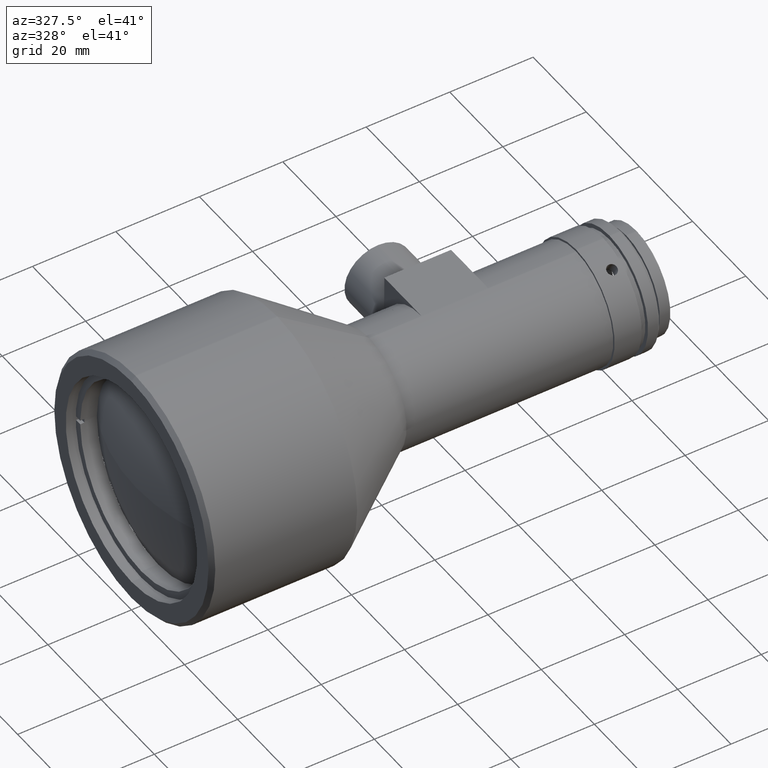
[diagram: clean part render]
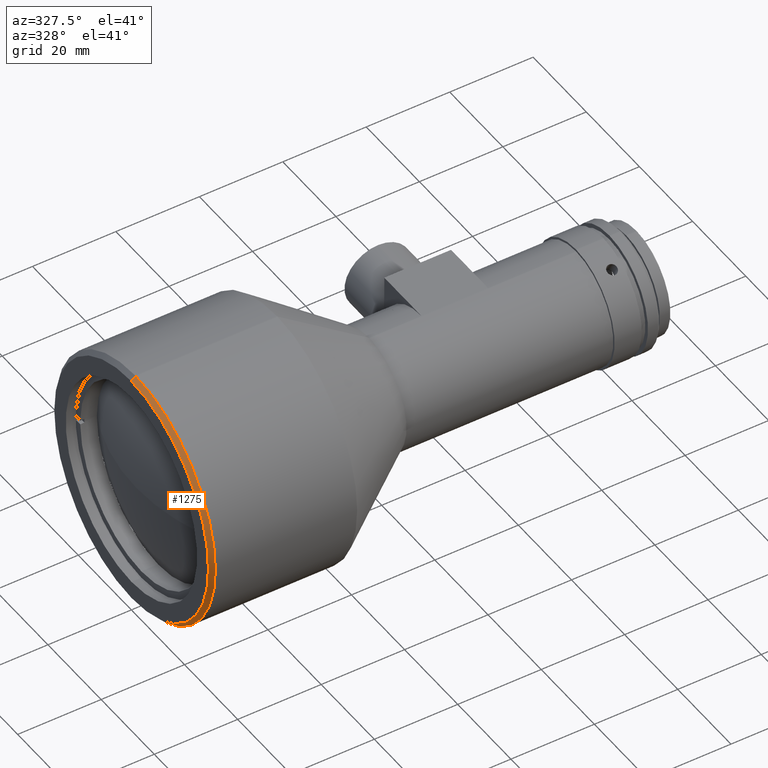
[diagram: same view with one face highlighted and labeled with its STEP entity id]
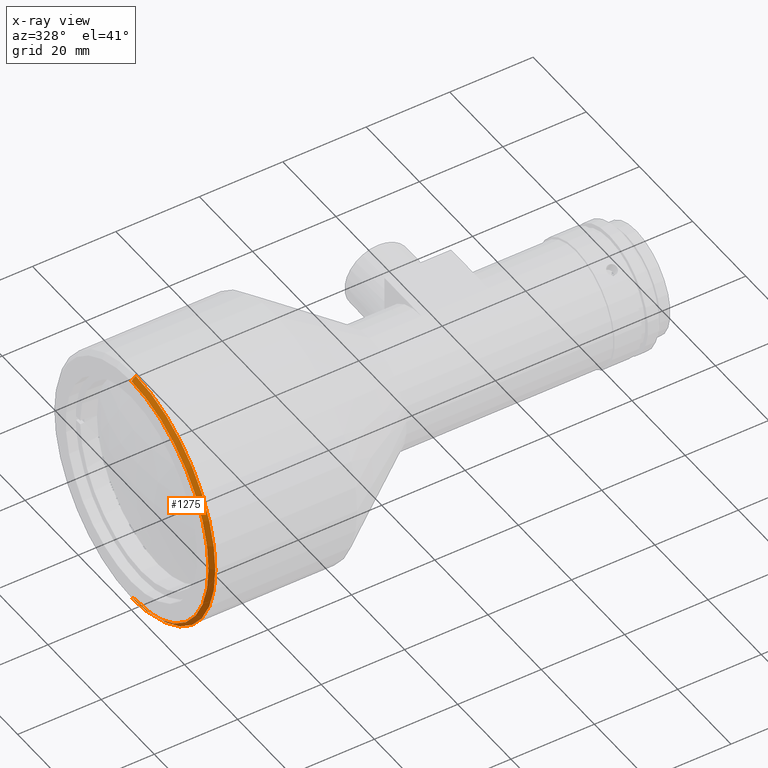
[diagram: x-ray of the same camera — body ghosted, the highlighted face saturated]
A machine part, auxiliary view. The second image highlights one B-rep face of the part: STEP entity #1275.
The next image is the same camera in x-ray: the body ghosted, the highlighted face saturated — about 0% of this face is hidden behind the body in this view.
In plain terms, the highlighted conical surface has half-angle 45 deg.
Its self-contained STEP definition (entity closure, byte-faithful):
#118 = VERTEX_POINT ( 'NONE', #1125 ) ;
#337 = EDGE_CURVE ( 'NONE', #995, #118, #2158, .T. ) ;
#340 = VECTOR ( 'NONE', #1368, 1000.000000000000000 ) ;
#461 = DIRECTION ( 'NONE',  ( 1.000000000000000000, 0.0000000000000000000, 0.0000000000000000000 ) ) ;
#613 = VECTOR ( 'NONE', #2077, 1000.000000000000000 ) ;
#768 = DIRECTION ( 'NONE',  ( -1.000000000000000000, -0.0000000000000000000, -0.0000000000000000000 ) ) ;
#905 = DIRECTION ( 'NONE',  ( 0.0000000000000000000, 0.0000000000000000000, -1.000000000000000000 ) ) ;
#995 = VERTEX_POINT ( 'NONE', #1664 ) ;
#1039 = EDGE_CURVE ( 'NONE', #2712, #2283, #2794, .T. ) ;
#1125 = CARTESIAN_POINT ( 'NONE',  ( 0.9999999999999870100, 3.673940397442059200E-015, -30.00000000000000000 ) ) ;
#1190 = AXIS2_PLACEMENT_3D ( 'NONE', #2621, #768, #2920 ) ;
#1231 = CIRCLE ( 'NONE', #1190, 29.00000000000001400 ) ;
#1275 = ADVANCED_FACE ( 'NONE', ( #2842 ), #3535, .T. ) ;
#1368 = DIRECTION ( 'NONE',  ( 0.7071067811865487900, 8.659560562354918100E-017, 0.7071067811865463500 ) ) ;
#1417 = CARTESIAN_POINT ( 'NONE',  ( 0.0000000000000000000, 3.551475717527326400E-015, 29.00000000000001400 ) ) ;
#1502 = ORIENTED_EDGE ( 'NONE', *, *, #1039, .F. ) ;
#1638 = EDGE_LOOP ( 'NONE', ( #1502, #3083, #2524, #2856 ) ) ;
#1662 = DIRECTION ( 'NONE',  ( 1.000000000000000000, 0.0000000000000000000, 0.0000000000000000000 ) ) ;
#1664 = CARTESIAN_POINT ( 'NONE',  ( 0.0000000000000000000, 0.0000000000000000000, -29.00000000000001400 ) ) ;
#1813 = CARTESIAN_POINT ( 'NONE',  ( 0.0000000000000000000, 3.612708057484693200E-015, 29.00000000000001400 ) ) ;
#1829 = EDGE_CURVE ( 'NONE', #2283, #118, #2009, .T. ) ;
#2009 = CIRCLE ( 'NONE', #2404, 30.00000000000000000 ) ;
#2057 = DIRECTION ( 'NONE',  ( 0.0000000000000000000, 0.0000000000000000000, -1.000000000000000000 ) ) ;
#2077 = DIRECTION ( 'NONE',  ( 0.7071067811865487900, 0.0000000000000000000, -0.7071067811865463500 ) ) ;
#2158 = LINE ( 'NONE', #3863, #613 ) ;
#2283 = VERTEX_POINT ( 'NONE', #2805 ) ;
#2404 = AXIS2_PLACEMENT_3D ( 'NONE', #3772, #461, #905 ) ;
#2524 = ORIENTED_EDGE ( 'NONE', *, *, #337, .T. ) ;
#2621 = CARTESIAN_POINT ( 'NONE',  ( 0.0000000000000000000, 0.0000000000000000000, 0.0000000000000000000 ) ) ;
#2708 = CARTESIAN_POINT ( 'NONE',  ( 0.0000000000000000000, 0.0000000000000000000, 0.0000000000000000000 ) ) ;
#2712 = VERTEX_POINT ( 'NONE', #1813 ) ;
#2794 = LINE ( 'NONE', #1417, #340 ) ;
#2805 = CARTESIAN_POINT ( 'NONE',  ( 0.9999999999999870100, 0.0000000000000000000, 30.00000000000000000 ) ) ;
#2842 = FACE_OUTER_BOUND ( 'NONE', #1638, .T. ) ;
#2856 = ORIENTED_EDGE ( 'NONE', *, *, #1829, .F. ) ;
#2920 = DIRECTION ( 'NONE',  ( 0.0000000000000000000, 0.0000000000000000000, -1.000000000000000000 ) ) ;
#3011 = EDGE_CURVE ( 'NONE', #995, #2712, #1231, .T. ) ;
#3083 = ORIENTED_EDGE ( 'NONE', *, *, #3011, .F. ) ;
#3354 = AXIS2_PLACEMENT_3D ( 'NONE', #2708, #1662, #2057 ) ;
#3535 = CONICAL_SURFACE ( 'NONE', #3354, 29.00000000000001400, 0.7853981633974466100 ) ;
#3772 = CARTESIAN_POINT ( 'NONE',  ( 0.9999999999999870100, 0.0000000000000000000, 0.0000000000000000000 ) ) ;
#3863 = CARTESIAN_POINT ( 'NONE',  ( 0.0000000000000000000, 0.0000000000000000000, -29.00000000000001400 ) ) ;